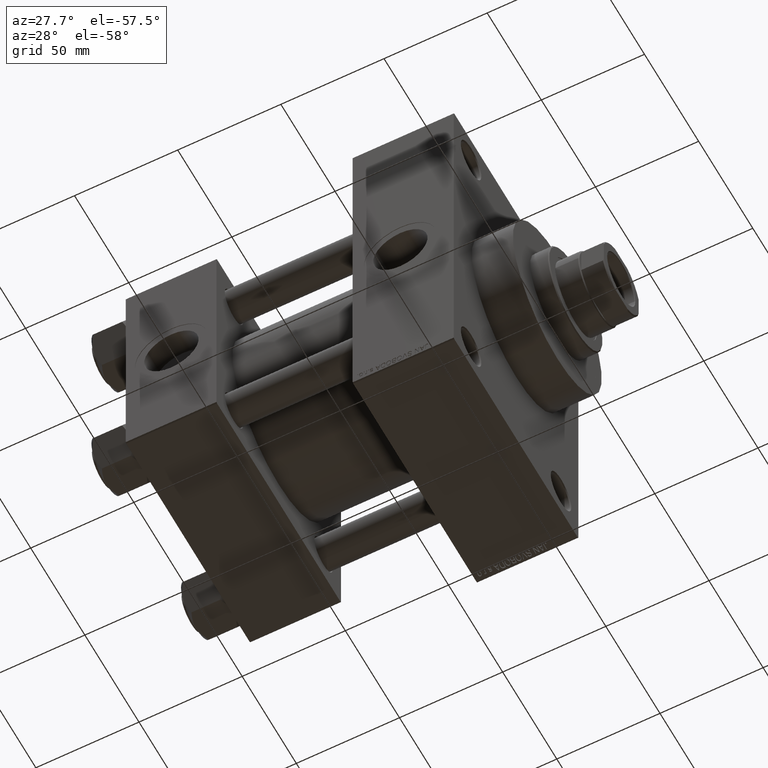
[diagram: clean part render]
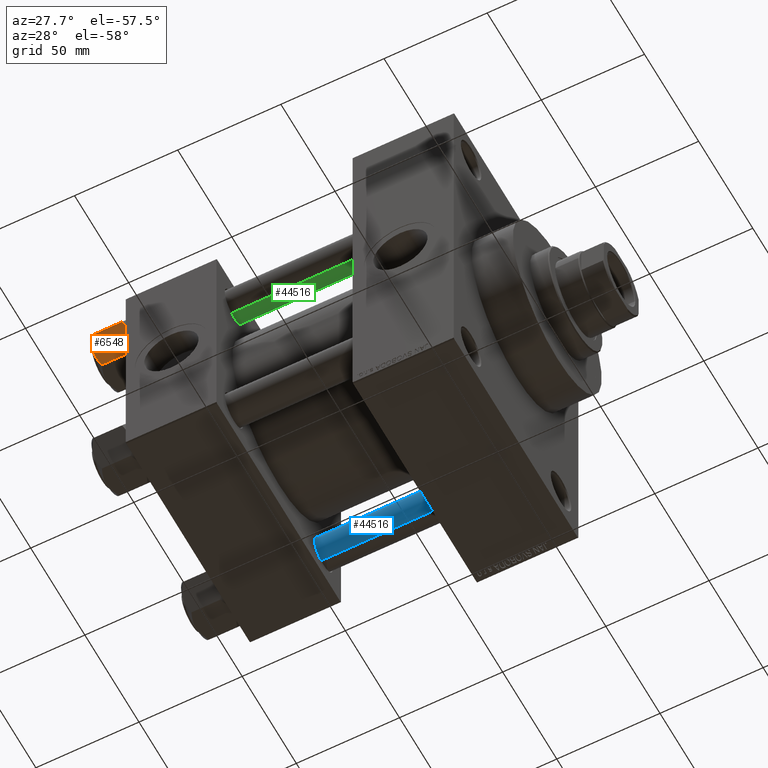
[diagram: same view with three faces highlighted in distinct colors, each labeled with its STEP entity id]
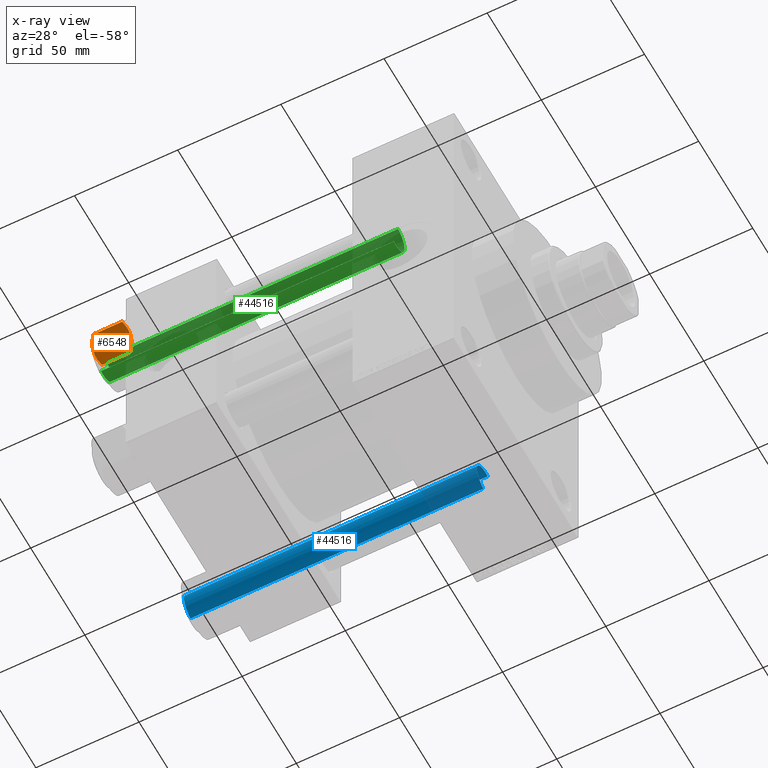
[diagram: x-ray of the same camera — body ghosted, the three highlighted faces saturated]
A machine part, auxiliary view with three faces highlighted in distinct colors.
The next image is the same camera in x-ray (body ghosted, the three faces saturated) — at least one of them is partly hidden behind the body in this view.
Their STEP definitions:

[orange] entity #6548 — the highlighted planar face has unit normal (0, 0.866, 0.5).
#487 = CARTESIAN_POINT ( 'NONE',  ( -12.38621571200405569, 5.601078687526927169, -17.94910618364698252 ) ) ;
#645 = EDGE_CURVE ( 'NONE', #29263, #23687, #10420, .T. ) ;
#993 = VECTOR ( 'NONE', #26593, 999.9999999999998863 ) ;
#1890 = CARTESIAN_POINT ( 'NONE',  ( -11.71500000000000341, 6.763658403556467746, 0.000000000000000000 ) ) ;
#2257 = VERTEX_POINT ( 'NONE', #16303 ) ;
#2481 = CARTESIAN_POINT ( 'NONE',  ( -9.439480280627259745, 10.70497417113493022, -17.26828031537189290 ) ) ;
#2553 = CARTESIAN_POINT ( 'NONE',  ( -11.71500000000000341, 6.763658403556467746, 0.000000000000000000 ) ) ;
#3401 = DIRECTION ( 'NONE',  ( 0.4999999999999999445, 0.8660254037844387076, 0.000000000000000000 ) ) ;
#3654 = LINE ( 'NONE', #10175, #13257 ) ;
#4581 = CARTESIAN_POINT ( 'NONE',  ( -13.04337073483128329, 4.462852799541079385, -17.75691532989870325 ) ) ;
#5272 = CARTESIAN_POINT ( 'NONE',  ( -9.114548888011780647, 11.26777185211904353, -0.9142282604026925608 ) ) ;
#5702 = CARTESIAN_POINT ( 'NONE',  ( -14.92394044919338825, 1.205610507090627781, -1.434462921875002683 ) ) ;
#6114 = VECTOR ( 'NONE', #28592, 999.9999999999998863 ) ;
#6152 = CARTESIAN_POINT ( 'NONE',  ( -7.809999999999996945, 13.52731680711293727, -16.00000000000000000 ) ) ;
#6171 = CARTESIAN_POINT ( 'NONE',  ( -12.37702203890362185, 5.617002596445053619, 4.300668617525835570E-15 ) ) ;
#6319 = DIRECTION ( 'NONE',  ( -0.000000000000000000, -0.000000000000000000, 1.000000000000000000 ) ) ;
#6548 = ADVANCED_FACE ( 'NONE', ( #38254 ), #19711, .F. ) ;
#7107 = CARTESIAN_POINT ( 'NONE',  ( -11.71500000000000341, 6.763658403556467746, 0.000000000000000000 ) ) ;
#7968 = CARTESIAN_POINT ( 'NONE',  ( -11.71500000000000341, 6.763658403556467746, -18.00000000000000000 ) ) ;
#9493 = EDGE_LOOP ( 'NONE', ( #13022, #33222, #31951, #17828, #21147, #29287, #39941, #22165, #10794, #22382 ) ) ;
#9558 = CARTESIAN_POINT ( 'NONE',  ( -15.22736220980736377, 0.6800686015852189792, -1.706311779141444385 ) ) ;
#9791 = CARTESIAN_POINT ( 'NONE',  ( -15.52647173767732802, 0.1619957022864961793, -2.000000000000000000 ) ) ;
#10175 = CARTESIAN_POINT ( 'NONE',  ( -7.809999999999996945, 13.52731680711293727, -18.00000000000000000 ) ) ;
#10399 = CARTESIAN_POINT ( 'NONE',  ( -15.61999999999999567, 8.023367828467702033E-15, -16.00000000000000000 ) ) ;
#10420 = B_SPLINE_CURVE_WITH_KNOTS ( 'NONE', 3,
 ( #37853, #21806, #29899, #36497, #4581, #487, #43720, #7968 ),
 .UNSPECIFIED., .F., .F.,
 ( 4, 2, 2, 4 ),
 ( 4.472842641907744530E-07, 0.003945636373369311792, 0.005918230917921873946, 0.007890825462474436100 ),
 .UNSPECIFIED. ) ;
#10794 = ORIENTED_EDGE ( 'NONE', *, *, #13886, .F. ) ;
#11023 = VERTEX_POINT ( 'NONE', #24265 ) ;
#11162 = EDGE_CURVE ( 'NONE', #23977, #35081, #32679, .T. ) ;
#11530 = CARTESIAN_POINT ( 'NONE',  ( -15.61999999999999567, 8.023367828467702033E-15, -1.999999999999998224 ) ) ;
#11754 = DIRECTION ( 'NONE',  ( 0.4999999999999998890, 0.8660254037844385966, 0.000000000000000000 ) ) ;
#11881 = LINE ( 'NONE', #16214, #993 ) ;
#12037 = CARTESIAN_POINT ( 'NONE',  ( -8.502393313253749696, 12.32805640973648309, -1.411989271640067933 ) ) ;
#12087 = EDGE_CURVE ( 'NONE', #37332, #24003, #41116, .T. ) ;
#12937 = CARTESIAN_POINT ( 'NONE',  ( -14.30591678195076177, 2.276058899034892224, -0.9473872146228117241 ) ) ;
#13022 = ORIENTED_EDGE ( 'NONE', *, *, #33863, .F. ) ;
#13106 = CARTESIAN_POINT ( 'NONE',  ( -7.903528262322672582, 13.36532110482643354, -16.00000000000000000 ) ) ;
#13257 = VECTOR ( 'NONE', #6319, 1000.000000000000000 ) ;
#13819 = CARTESIAN_POINT ( 'NONE',  ( -10.40215497533436917, 9.037572688741351001, -17.80281335400754017 ) ) ;
#13886 = EDGE_CURVE ( 'NONE', #23687, #2257, #27869, .T. ) ;
#14549 = EDGE_CURVE ( 'NONE', #2257, #19221, #35831, .T. ) ;
#16214 = CARTESIAN_POINT ( 'NONE',  ( -15.61999999999999567, 8.023367828467702033E-15, -1.999999999999998224 ) ) ;
#16303 = CARTESIAN_POINT ( 'NONE',  ( -7.903528262322672582, 13.36532110482643354, -16.00000000000000000 ) ) ;
#16369 = CARTESIAN_POINT ( 'NONE',  ( -11.04378428799594758, 7.926238119586002995, -0.05089381635301037932 ) ) ;
#17498 = CARTESIAN_POINT ( 'NONE',  ( -15.61999999999999567, 8.023367828467702033E-15, -16.00000000000000000 ) ) ;
#17828 = ORIENTED_EDGE ( 'NONE', *, *, #45344, .F. ) ;
#19221 = VERTEX_POINT ( 'NONE', #6152 ) ;
#19711 = PLANE ( 'NONE',  #25922 ) ;
#19856 = CARTESIAN_POINT ( 'NONE',  ( -15.61999999999999567, 8.023367828467702033E-15, -18.00000000000000000 ) ) ;
#19990 = CARTESIAN_POINT ( 'NONE',  ( -10.06459418565412278, 9.622245127110613083, -0.3836066851120565890 ) ) ;
#21147 = ORIENTED_EDGE ( 'NONE', *, *, #12087, .F. ) ;
#21529 = VECTOR ( 'NONE', #3401, 999.9999999999998863 ) ;
#21806 = CARTESIAN_POINT ( 'NONE',  ( -14.92760668674625713, 1.199260397376444409, -16.58801072835993295 ) ) ;
#22165 = ORIENTED_EDGE ( 'NONE', *, *, #14549, .F. ) ;
#22382 = ORIENTED_EDGE ( 'NONE', *, *, #645, .F. ) ;
#23087 = DIRECTION ( 'NONE',  ( 0.8660254037844387076, -0.4999999999999999445, 0.000000000000000000 ) ) ;
#23163 = EDGE_CURVE ( 'NONE', #19221, #33057, #3654, .T. ) ;
#23687 = VERTEX_POINT ( 'NONE', #32012 ) ;
#23977 = VERTEX_POINT ( 'NONE', #47588 ) ;
#24003 = VERTEX_POINT ( 'NONE', #7107 ) ;
#24265 = CARTESIAN_POINT ( 'NONE',  ( -15.61999999999999567, 8.023367828467702033E-15, -16.00000000000000000 ) ) ;
#24419 = DIRECTION ( 'NONE',  ( -0.000000000000000000, -0.000000000000000000, 1.000000000000000000 ) ) ;
#25133 = B_SPLINE_CURVE_WITH_KNOTS ( 'NONE', 3,
 ( #2553, #6171, #32207, #46435, #12937, #5702, #9558, #9791 ),
 .UNSPECIFIED., .F., .F.,
 ( 4, 2, 2, 4 ),
 ( 0.007890825462474429161, 0.01181022244528554845, 0.01376992093669110635, 0.01572961942809666600 ),
 .UNSPECIFIED. ) ;
#25922 = AXIS2_PLACEMENT_3D ( 'NONE', #26938, #23087, #11754 ) ;
#26593 = DIRECTION ( 'NONE',  ( -0.4999999999999999445, -0.8660254037844387076, 0.000000000000000000 ) ) ;
#26938 = CARTESIAN_POINT ( 'NONE',  ( -15.61999999999999567, 8.023367828467702033E-15, -18.00000000000000000 ) ) ;
#27580 = CARTESIAN_POINT ( 'NONE',  ( -8.506059550806615022, 12.32170630002230638, -16.56553707812499354 ) ) ;
#27869 = B_SPLINE_CURVE_WITH_KNOTS ( 'NONE', 3,
 ( #45891, #46832, #13819, #2481, #38664, #27580, #46363, #13106 ),
 .UNSPECIFIED., .F., .F.,
 ( 4, 2, 2, 4 ),
 ( 0.007890825462474436100, 0.01181022244528555365, 0.01376992093669111156, 0.01572961942809666946 ),
 .UNSPECIFIED. ) ;
#28592 = DIRECTION ( 'NONE',  ( 0.4999999999999999445, 0.8660254037844387076, 0.000000000000000000 ) ) ;
#29263 = VERTEX_POINT ( 'NONE', #33324 ) ;
#29287 = ORIENTED_EDGE ( 'NONE', *, *, #45834, .F. ) ;
#29899 = CARTESIAN_POINT ( 'NONE',  ( -14.31545111198821374, 2.259544954993889299, -17.08577173959730544 ) ) ;
#31951 = ORIENTED_EDGE ( 'NONE', *, *, #11162, .F. ) ;
#32012 = CARTESIAN_POINT ( 'NONE',  ( -11.71500000000000341, 6.763658403556467746, -18.00000000000000000 ) ) ;
#32207 = CARTESIAN_POINT ( 'NONE',  ( -13.02784502466562522, 4.489744118371585380, -0.1971866459924509485 ) ) ;
#32501 = EDGE_CURVE ( 'NONE', #11023, #35081, #38877, .T. ) ;
#32679 = LINE ( 'NONE', #47593, #44523 ) ;
#33057 = VERTEX_POINT ( 'NONE', #34466 ) ;
#33222 = ORIENTED_EDGE ( 'NONE', *, *, #32501, .T. ) ;
#33324 = CARTESIAN_POINT ( 'NONE',  ( -15.52647173767732802, 0.1619957022864961793, -16.00000000000000000 ) ) ;
#33863 = EDGE_CURVE ( 'NONE', #11023, #29263, #47503, .T. ) ;
#34466 = CARTESIAN_POINT ( 'NONE',  ( -7.809999999999996945, 13.52731680711293727, -1.999999999999998224 ) ) ;
#34696 = CARTESIAN_POINT ( 'NONE',  ( -10.38662926516871998, 9.064464007571849891, -0.2430846701012936983 ) ) ;
#34937 = CARTESIAN_POINT ( 'NONE',  ( -11.38181071908714515, 7.340759166634869715, 4.331726492258492723E-15 ) ) ;
#35081 = VERTEX_POINT ( 'NONE', #11530 ) ;
#35831 = LINE ( 'NONE', #17498, #6114 ) ;
#36497 = CARTESIAN_POINT ( 'NONE',  ( -13.36540581434587516, 3.905071680002318857, -17.61639331488794369 ) ) ;
#37332 = VERTEX_POINT ( 'NONE', #47197 ) ;
#37853 = CARTESIAN_POINT ( 'NONE',  ( -15.52647173767732802, 0.1619957022864961793, -16.00000000000000000 ) ) ;
#38254 = FACE_OUTER_BOUND ( 'NONE', #9493, .T. ) ;
#38298 = CARTESIAN_POINT ( 'NONE',  ( -7.903528262322672582, 13.36532110482643354, -2.000000000000000000 ) ) ;
#38664 = CARTESIAN_POINT ( 'NONE',  ( -9.124083218049239719, 11.25125790807804194, -17.05261278537718539 ) ) ;
#38877 = LINE ( 'NONE', #19856, #42037 ) ;
#39941 = ORIENTED_EDGE ( 'NONE', *, *, #23163, .F. ) ;
#41116 = B_SPLINE_CURVE_WITH_KNOTS ( 'NONE', 3,
 ( #38298, #12037, #5272, #19990, #34696, #16369, #34937, #1890 ),
 .UNSPECIFIED., .F., .F.,
 ( 4, 2, 2, 4 ),
 ( 4.472842641835287214E-07, 0.003945636373369305720, 0.005918230917921867007, 0.007890825462474429161 ),
 .UNSPECIFIED. ) ;
#42037 = VECTOR ( 'NONE', #24419, 1000.000000000000000 ) ;
#43720 = CARTESIAN_POINT ( 'NONE',  ( -12.04818928091285457, 6.186557640478063114, -18.00000000000000711 ) ) ;
#44523 = VECTOR ( 'NONE', #47366, 999.9999999999998863 ) ;
#45344 = EDGE_CURVE ( 'NONE', #24003, #23977, #25133, .T. ) ;
#45834 = EDGE_CURVE ( 'NONE', #33057, #37332, #11881, .T. ) ;
#45891 = CARTESIAN_POINT ( 'NONE',  ( -11.71500000000000341, 6.763658403556467746, -18.00000000000000000 ) ) ;
#46363 = CARTESIAN_POINT ( 'NONE',  ( -8.202637790192643052, 12.84724820552771263, -16.29368822085855584 ) ) ;
#46435 = CARTESIAN_POINT ( 'NONE',  ( -13.99051971937273997, 2.822342635978005276, -0.7317196846281108780 ) ) ;
#46832 = CARTESIAN_POINT ( 'NONE',  ( -11.05297796109637787, 7.910314210667880985, -18.00000000000000355 ) ) ;
#47197 = CARTESIAN_POINT ( 'NONE',  ( -7.903528262322672582, 13.36532110482643354, -2.000000000000000000 ) ) ;
#47366 = DIRECTION ( 'NONE',  ( -0.4999999999999999445, -0.8660254037844387076, 0.000000000000000000 ) ) ;
#47503 = LINE ( 'NONE', #10399, #21529 ) ;
#47588 = CARTESIAN_POINT ( 'NONE',  ( -15.52647173767732802, 0.1619957022864961793, -2.000000000000000000 ) ) ;
#47593 = CARTESIAN_POINT ( 'NONE',  ( -15.61999999999999567, 8.023367828467702033E-15, -1.999999999999998224 ) ) ;

[blue] entity #44516 — the highlighted cylindrical surface (edge-blend (fillet) strip) has radius 8 mm, axis along (1, -0, 0).
#39 = EDGE_CURVE ( 'NONE', #14068, #24922, #47449, .T. ) ;
#3147 = ORIENTED_EDGE ( 'NONE', *, *, #39, .F. ) ;
#4924 = AXIS2_PLACEMENT_3D ( 'NONE', #43292, #23783, #31730 ) ;
#6155 = AXIS2_PLACEMENT_3D ( 'NONE', #25695, #40375, #21851 ) ;
#7966 = ORIENTED_EDGE ( 'NONE', *, *, #30262, .T. ) ;
#8229 = ORIENTED_EDGE ( 'NONE', *, *, #14602, .T. ) ;
#9167 = CARTESIAN_POINT ( 'NONE',  ( 0.000000000000000000, 0.000000000000000000, 0.4999999999999726885 ) ) ;
#13486 = DIRECTION ( 'NONE',  ( -0.000000000000000000, -0.000000000000000000, -1.000000000000000000 ) ) ;
#14068 = VERTEX_POINT ( 'NONE', #33325 ) ;
#14602 = EDGE_CURVE ( 'NONE', #14068, #23034, #27706, .T. ) ;
#15338 = CARTESIAN_POINT ( 'NONE',  ( -8.000000000000000000, 0.000000000000000000, 142.4999999999999716 ) ) ;
#15786 = AXIS2_PLACEMENT_3D ( 'NONE', #9167, #42687, #31122 ) ;
#19632 = EDGE_CURVE ( 'NONE', #23034, #21893, #35279, .T. ) ;
#19648 = CIRCLE ( 'NONE', #15786, 8.000000000000000000 ) ;
#21851 = DIRECTION ( 'NONE',  ( 1.000000000000000000, 0.000000000000000000, 0.000000000000000000 ) ) ;
#21893 = VERTEX_POINT ( 'NONE', #25181 ) ;
#23034 = VERTEX_POINT ( 'NONE', #15338 ) ;
#23470 = ORIENTED_EDGE ( 'NONE', *, *, #19632, .T. ) ;
#23783 = DIRECTION ( 'NONE',  ( -0.000000000000000000, -0.000000000000000000, -1.000000000000000000 ) ) ;
#24922 = VERTEX_POINT ( 'NONE', #35557 ) ;
#25181 = CARTESIAN_POINT ( 'NONE',  ( -8.000000000000000000, 0.000000000000000000, 0.4999999999999726885 ) ) ;
#25695 = CARTESIAN_POINT ( 'NONE',  ( 0.000000000000000000, 0.000000000000000000, 142.4999999999999716 ) ) ;
#27706 = CIRCLE ( 'NONE', #6155, 8.000000000000000000 ) ;
#27973 = EDGE_LOOP ( 'NONE', ( #3147, #8229, #23470, #7966 ) ) ;
#28052 = CARTESIAN_POINT ( 'NONE',  ( -8.000000000000000000, 0.000000000000000000, 143.0000000000000000 ) ) ;
#29141 = CARTESIAN_POINT ( 'NONE',  ( 8.000000000000000000, 9.797174393178825657E-16, 143.0000000000000000 ) ) ;
#30262 = EDGE_CURVE ( 'NONE', #21893, #24922, #19648, .T. ) ;
#31122 = DIRECTION ( 'NONE',  ( 1.000000000000000000, 0.000000000000000000, 0.000000000000000000 ) ) ;
#31494 = CYLINDRICAL_SURFACE ( 'NONE', #4924, 8.000000000000000000 ) ;
#31730 = DIRECTION ( 'NONE',  ( -1.000000000000000000, 0.000000000000000000, 0.000000000000000000 ) ) ;
#33325 = CARTESIAN_POINT ( 'NONE',  ( 8.000000000000000000, 9.797174393178825657E-16, 142.4999999999999716 ) ) ;
#35279 = LINE ( 'NONE', #28052, #40072 ) ;
#35408 = VECTOR ( 'NONE', #13486, 1000.000000000000000 ) ;
#35557 = CARTESIAN_POINT ( 'NONE',  ( 8.000000000000000000, 9.797174393178825657E-16, 0.4999999999999726885 ) ) ;
#40072 = VECTOR ( 'NONE', #45881, 1000.000000000000000 ) ;
#40375 = DIRECTION ( 'NONE',  ( 0.000000000000000000, 0.000000000000000000, -1.000000000000000000 ) ) ;
#42333 = FACE_OUTER_BOUND ( 'NONE', #27973, .T. ) ;
#42687 = DIRECTION ( 'NONE',  ( -0.000000000000000000, -0.000000000000000000, 1.000000000000000000 ) ) ;
#43292 = CARTESIAN_POINT ( 'NONE',  ( 0.000000000000000000, 0.000000000000000000, 143.0000000000000000 ) ) ;
#44516 = ADVANCED_FACE ( 'NONE', ( #42333 ), #31494, .T. ) ;
#45881 = DIRECTION ( 'NONE',  ( -0.000000000000000000, -0.000000000000000000, -1.000000000000000000 ) ) ;
#47449 = LINE ( 'NONE', #29141, #35408 ) ;

[green] entity #44516 — the highlighted cylindrical surface (edge-blend (fillet) strip) has radius 8 mm, axis along (1, 0, 0).
#39 = EDGE_CURVE ( 'NONE', #14068, #24922, #47449, .T. ) ;
#3147 = ORIENTED_EDGE ( 'NONE', *, *, #39, .F. ) ;
#4924 = AXIS2_PLACEMENT_3D ( 'NONE', #43292, #23783, #31730 ) ;
#6155 = AXIS2_PLACEMENT_3D ( 'NONE', #25695, #40375, #21851 ) ;
#7966 = ORIENTED_EDGE ( 'NONE', *, *, #30262, .T. ) ;
#8229 = ORIENTED_EDGE ( 'NONE', *, *, #14602, .T. ) ;
#9167 = CARTESIAN_POINT ( 'NONE',  ( 0.000000000000000000, 0.000000000000000000, 0.4999999999999726885 ) ) ;
#13486 = DIRECTION ( 'NONE',  ( -0.000000000000000000, -0.000000000000000000, -1.000000000000000000 ) ) ;
#14068 = VERTEX_POINT ( 'NONE', #33325 ) ;
#14602 = EDGE_CURVE ( 'NONE', #14068, #23034, #27706, .T. ) ;
#15338 = CARTESIAN_POINT ( 'NONE',  ( -8.000000000000000000, 0.000000000000000000, 142.4999999999999716 ) ) ;
#15786 = AXIS2_PLACEMENT_3D ( 'NONE', #9167, #42687, #31122 ) ;
#19632 = EDGE_CURVE ( 'NONE', #23034, #21893, #35279, .T. ) ;
#19648 = CIRCLE ( 'NONE', #15786, 8.000000000000000000 ) ;
#21851 = DIRECTION ( 'NONE',  ( 1.000000000000000000, 0.000000000000000000, 0.000000000000000000 ) ) ;
#21893 = VERTEX_POINT ( 'NONE', #25181 ) ;
#23034 = VERTEX_POINT ( 'NONE', #15338 ) ;
#23470 = ORIENTED_EDGE ( 'NONE', *, *, #19632, .T. ) ;
#23783 = DIRECTION ( 'NONE',  ( -0.000000000000000000, -0.000000000000000000, -1.000000000000000000 ) ) ;
#24922 = VERTEX_POINT ( 'NONE', #35557 ) ;
#25181 = CARTESIAN_POINT ( 'NONE',  ( -8.000000000000000000, 0.000000000000000000, 0.4999999999999726885 ) ) ;
#25695 = CARTESIAN_POINT ( 'NONE',  ( 0.000000000000000000, 0.000000000000000000, 142.4999999999999716 ) ) ;
#27706 = CIRCLE ( 'NONE', #6155, 8.000000000000000000 ) ;
#27973 = EDGE_LOOP ( 'NONE', ( #3147, #8229, #23470, #7966 ) ) ;
#28052 = CARTESIAN_POINT ( 'NONE',  ( -8.000000000000000000, 0.000000000000000000, 143.0000000000000000 ) ) ;
#29141 = CARTESIAN_POINT ( 'NONE',  ( 8.000000000000000000, 9.797174393178825657E-16, 143.0000000000000000 ) ) ;
#30262 = EDGE_CURVE ( 'NONE', #21893, #24922, #19648, .T. ) ;
#31122 = DIRECTION ( 'NONE',  ( 1.000000000000000000, 0.000000000000000000, 0.000000000000000000 ) ) ;
#31494 = CYLINDRICAL_SURFACE ( 'NONE', #4924, 8.000000000000000000 ) ;
#31730 = DIRECTION ( 'NONE',  ( -1.000000000000000000, 0.000000000000000000, 0.000000000000000000 ) ) ;
#33325 = CARTESIAN_POINT ( 'NONE',  ( 8.000000000000000000, 9.797174393178825657E-16, 142.4999999999999716 ) ) ;
#35279 = LINE ( 'NONE', #28052, #40072 ) ;
#35408 = VECTOR ( 'NONE', #13486, 1000.000000000000000 ) ;
#35557 = CARTESIAN_POINT ( 'NONE',  ( 8.000000000000000000, 9.797174393178825657E-16, 0.4999999999999726885 ) ) ;
#40072 = VECTOR ( 'NONE', #45881, 1000.000000000000000 ) ;
#40375 = DIRECTION ( 'NONE',  ( 0.000000000000000000, 0.000000000000000000, -1.000000000000000000 ) ) ;
#42333 = FACE_OUTER_BOUND ( 'NONE', #27973, .T. ) ;
#42687 = DIRECTION ( 'NONE',  ( -0.000000000000000000, -0.000000000000000000, 1.000000000000000000 ) ) ;
#43292 = CARTESIAN_POINT ( 'NONE',  ( 0.000000000000000000, 0.000000000000000000, 143.0000000000000000 ) ) ;
#44516 = ADVANCED_FACE ( 'NONE', ( #42333 ), #31494, .T. ) ;
#45881 = DIRECTION ( 'NONE',  ( -0.000000000000000000, -0.000000000000000000, -1.000000000000000000 ) ) ;
#47449 = LINE ( 'NONE', #29141, #35408 ) ;